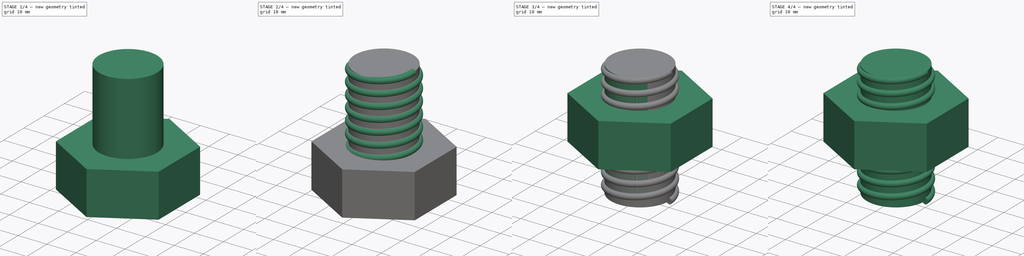
[diagram: build sequence overview — one tinted view per stage of 4, left to right]
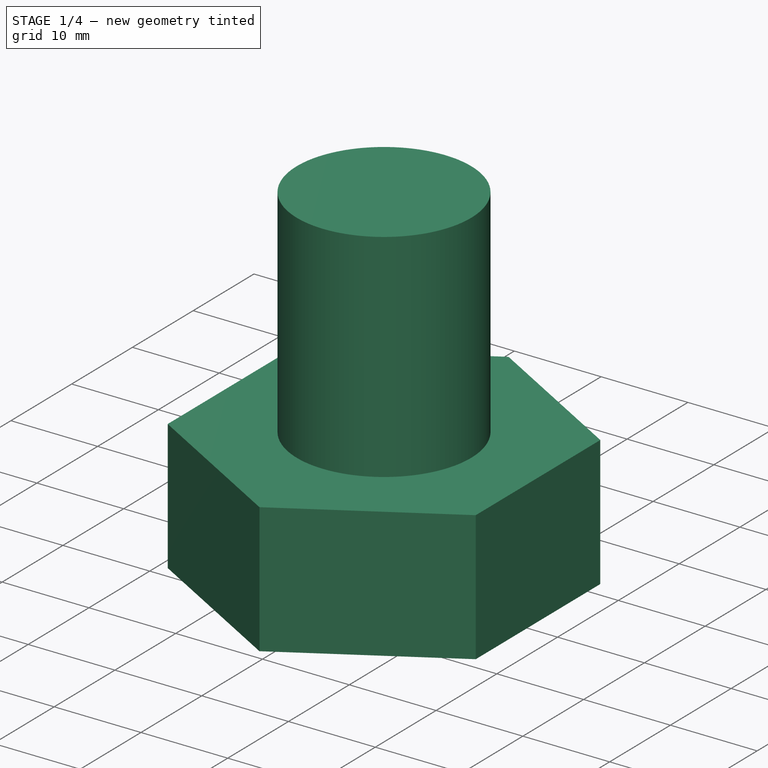
[diagram: stage 1 of 4 — iso view after this stage's code; geometry added in this stage tinted green]
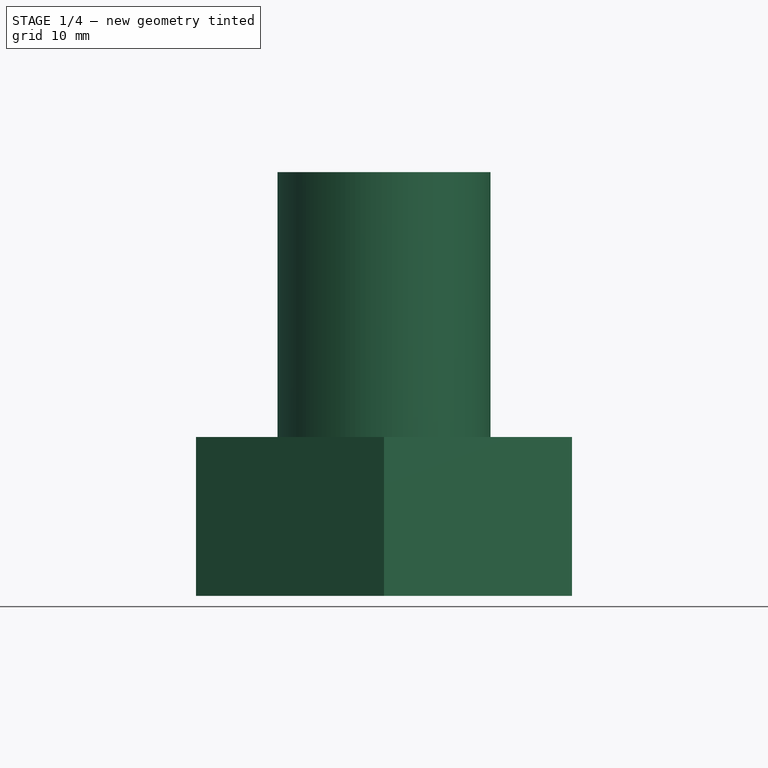
[diagram: stage 1 of 4 — front view after this stage's code; geometry added in this stage tinted green]
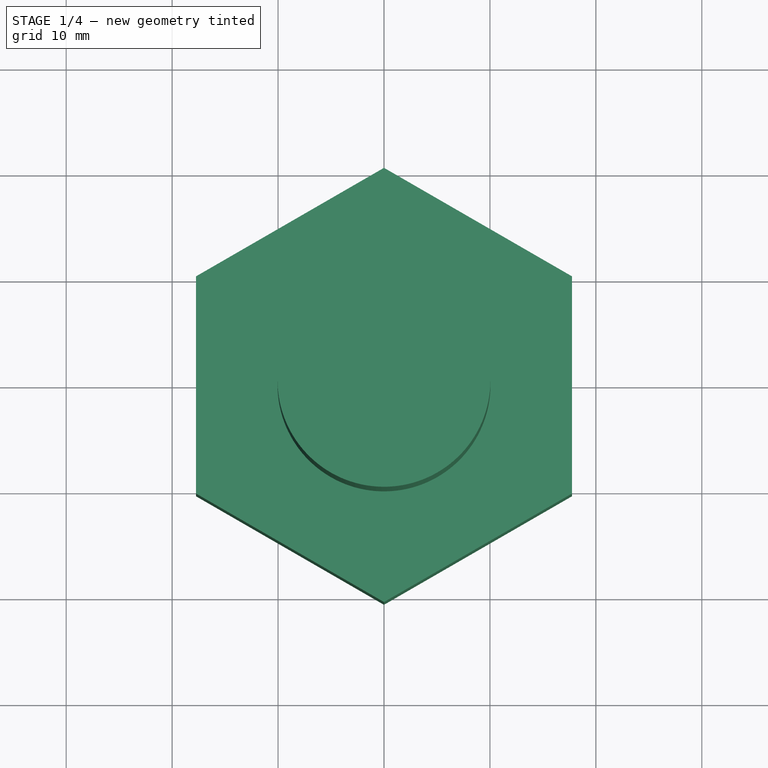
[diagram: stage 1 of 4 — top view after this stage's code; geometry added in this stage tinted green]
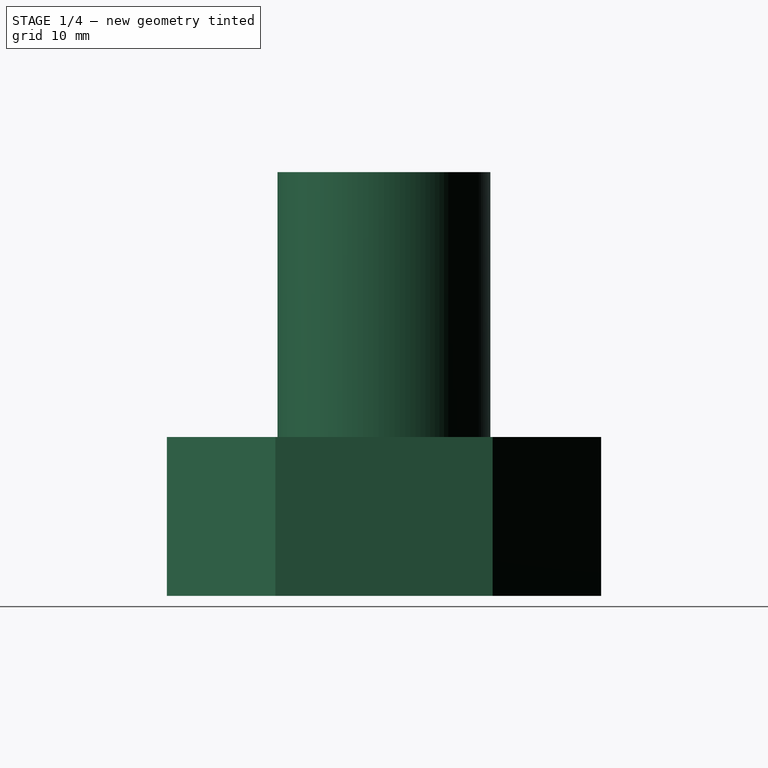
[diagram: stage 1 of 4 — right view after this stage's code; geometry added in this stage tinted green]
FCSTD DOCUMENT  (FreeCAD 0.20R27319 (Git))
Label: Threads
License: All rights reserved
LicenseURL: http://en.wikipedia.org/wiki/All_rights_reserved
objects: PartDesign::FeatureBase×3, Sketcher::SketchObject×3, PartDesign::Body×3, Part::Cylinder×2, Part::Helix×2, Part::Sweep×2, Part::MultiFuse×2, PartDesign::Pad×1, Part::Cut×1
note: 20 computed .brp shape members not serialized (recipe doc carries the construction recipe); baked Part::Feature solids carry a one-line shape summary decoded from their .brp

FEATURE [PartDesign::Body] Body001
  BaseFeature = -> Fusion
  Group = -> [BaseFeature001]
  Origin = -> Origin001
  Tip = -> BaseFeature001
FEATURE [Part::Cylinder] Cylinder001
  Angle = 360
  AttacherType = Attacher::AttachEngine3D
  FirstAngle = 0
  Height = 40
  Radius = 10.05
  SecondAngle = 0
FEATURE [Sketcher::SketchObject] Sketch002
  FullyConstrained = true
  MapMode = 5
  Support = -> [XY_Plane002]
  sketch-geometry (7):
    g0: LineSegment StartX=17.75 StartY=10.248 StartZ=0 EndX=0 EndY=20.4959 EndZ=0
    g1: LineSegment StartX=0 StartY=20.4959 StartZ=0 EndX=-17.75 EndY=10.248 EndZ=0
    g2: LineSegment StartX=-17.75 StartY=10.248 StartZ=0 EndX=-17.75 EndY=-10.248 EndZ=0
    g3: LineSegment StartX=-17.75 StartY=-10.248 StartZ=0 EndX=0 EndY=-20.4959 EndZ=0
    g4: LineSegment StartX=0 StartY=-20.4959 StartZ=0 EndX=17.75 EndY=-10.248 EndZ=0
    g5: LineSegment StartX=17.75 StartY=-10.248 StartZ=0 EndX=17.75 EndY=10.248 EndZ=0
    g6: Circle CenterX=0 CenterY=0 CenterZ=0 NormalX=0 NormalY=0 NormalZ=1 AngleXU=0 Radius=20.4959
  constraints (16):
    c: Coincident(g0,g1)
    c: Coincident(g1,g2)
    c: Coincident(g2,g3)
    c: Coincident(g3,g4)
    c: Coincident(g4,g5)
    c: Coincident(g5,g0)
    c: Equal(g0, g1-g5) x5
    c: PointOnObject(g0,g6)
    c: PointOnObject(g1,g6)
    c: PointOnObject(g2,g6)
    c: PointOnObject(g3,g6)
    c: PointOnObject(g4,g6)
    c: PointOnObject(g5,g6)
    c: Coincident(g6,g-1)
    c: Vertical(g0,g3)
    c: DistanceX(g1,g0) = 35.5
FEATURE [PartDesign::Pad] Pad
  Direction = (0,0,1)
  Length = 15
  Length2 = 10
  Profile = -> Sketch002
  ReferenceAxis = -> Sketch002 [N_Axis]
  Type = 0
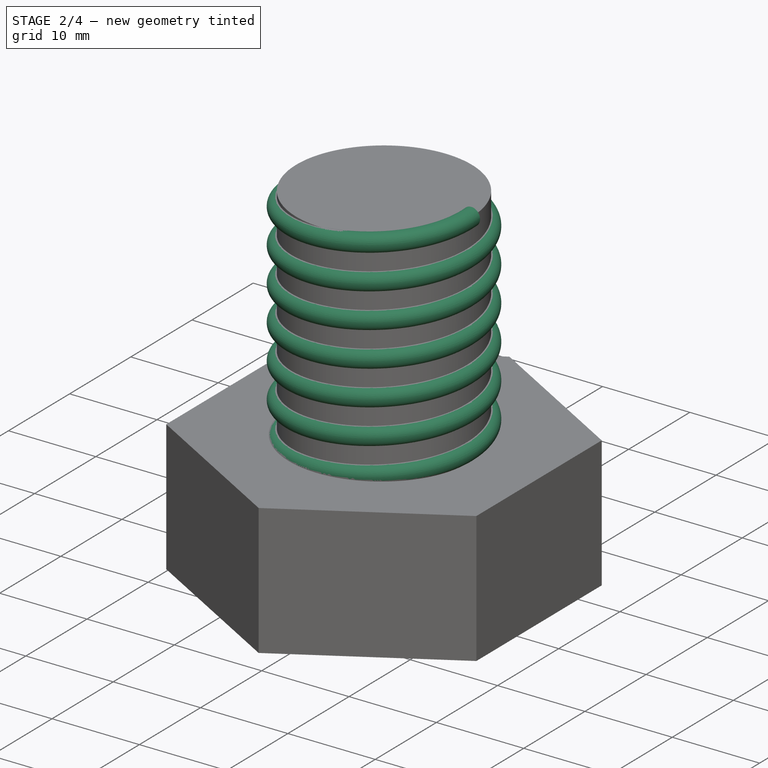
[diagram: stage 2 of 4 — iso view after this stage's code; geometry added in this stage tinted green]
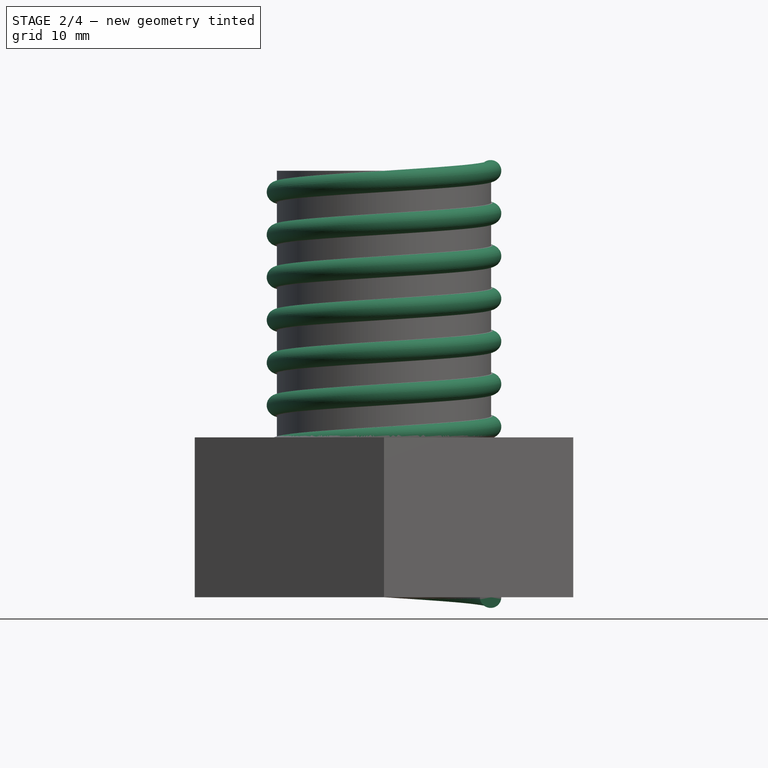
[diagram: stage 2 of 4 — front view after this stage's code; geometry added in this stage tinted green]
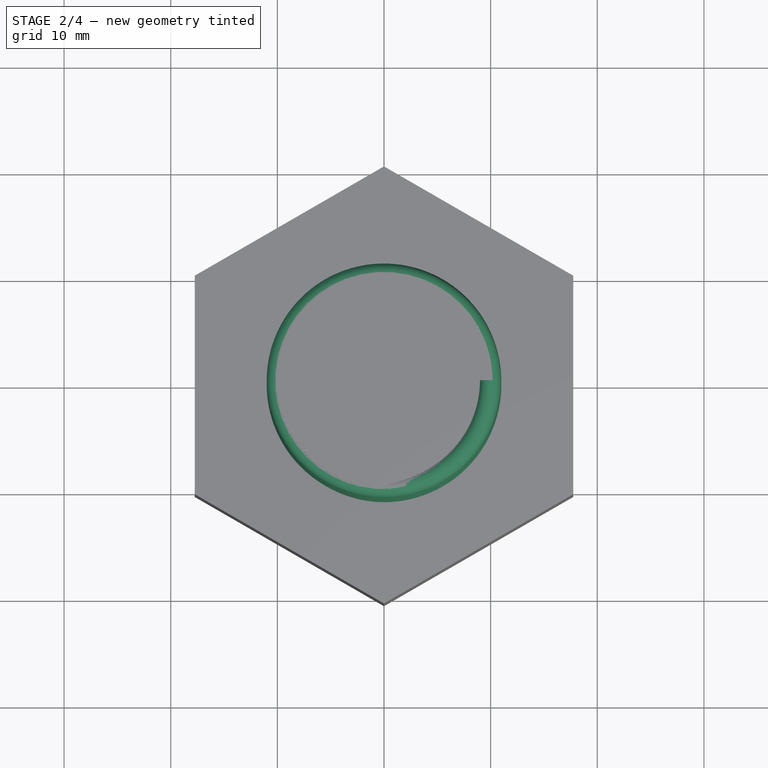
[diagram: stage 2 of 4 — top view after this stage's code; geometry added in this stage tinted green]
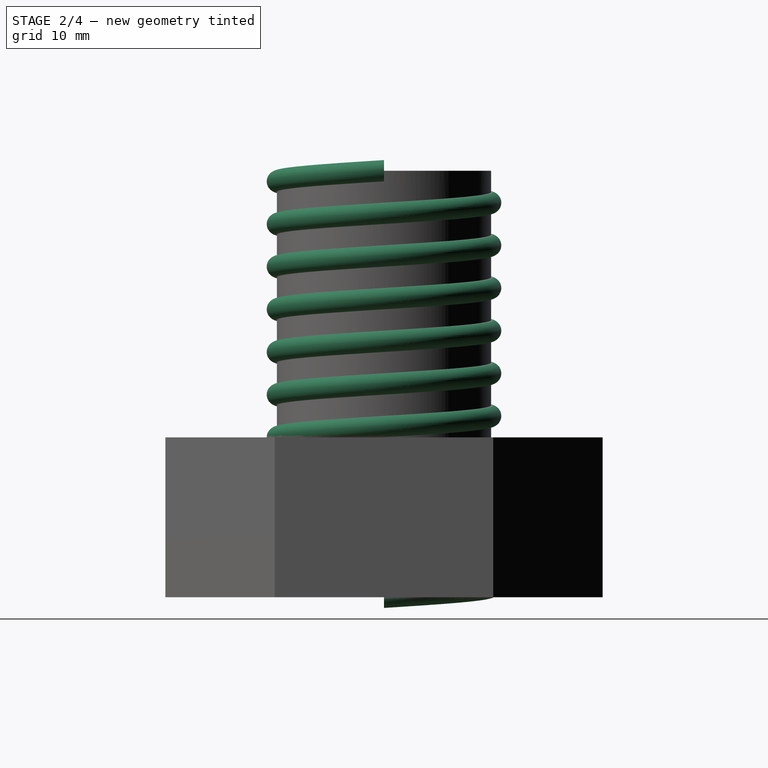
[diagram: stage 2 of 4 — right view after this stage's code; geometry added in this stage tinted green]
FEATURE [Part::Helix] Helix001
  Angle = 0
  AttacherType = Attacher::AttachEngine3D
  Height = 40
  LocalCoord = 0
  Pitch = 4
  Radius = 10
  SegmentLength = 1
  Style = 1
FEATURE [PartDesign::FeatureBase] BaseFeature002
  BaseFeature = -> Helix001
FEATURE [Sketcher::SketchObject] Sketch001
  ExternalGeometry = -> [BaseFeature002]
  FullyConstrained = true
  MapMode = 5
  Placement = pos=(0,0,0) rot=(1,0,0;1.5708rad)
  Support = -> [XZ_Plane002]
  sketch-geometry (1):
    g0: Circle CenterX=10 CenterY=40 CenterZ=0 NormalX=0 NormalY=0 NormalZ=1 AngleXU=0 Radius=1
  constraints (2):
    c: Coincident(g0,g-3)
    c: Diameter(g0) = 2
FEATURE [Part::Sweep] Sweep001
  Frenet = true
  Sections = -> [Sketch001]
  Solid = true
  Spine = -> BaseFeature002 [Edge10,Edge9,Edge8,Edge7,Edge6,Edge5,Edge4,Edge3,Edge2,Edge1]
  Transition = 1
FEATURE [Part::MultiFuse] Fusion001  label="Thread cut"
  Shapes = -> [Cylinder001,Sweep001]
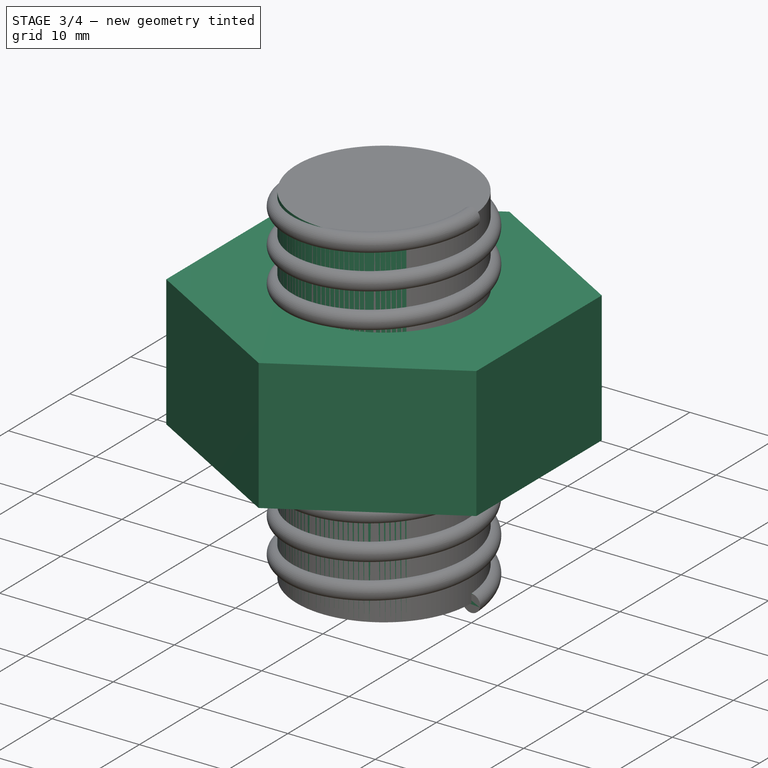
[diagram: stage 3 of 4 — iso view after this stage's code; geometry added in this stage tinted green]
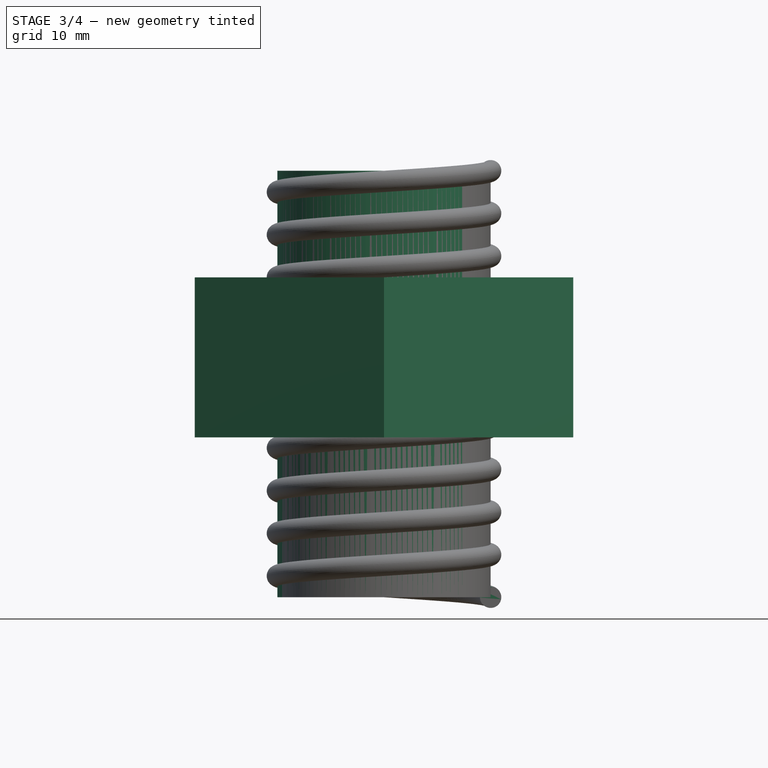
[diagram: stage 3 of 4 — front view after this stage's code; geometry added in this stage tinted green]
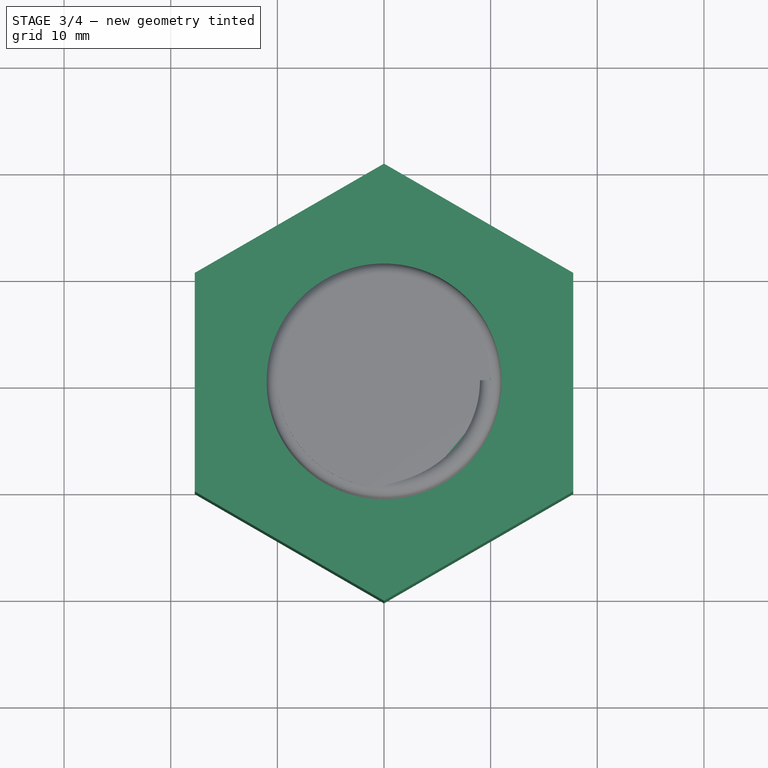
[diagram: stage 3 of 4 — top view after this stage's code; geometry added in this stage tinted green]
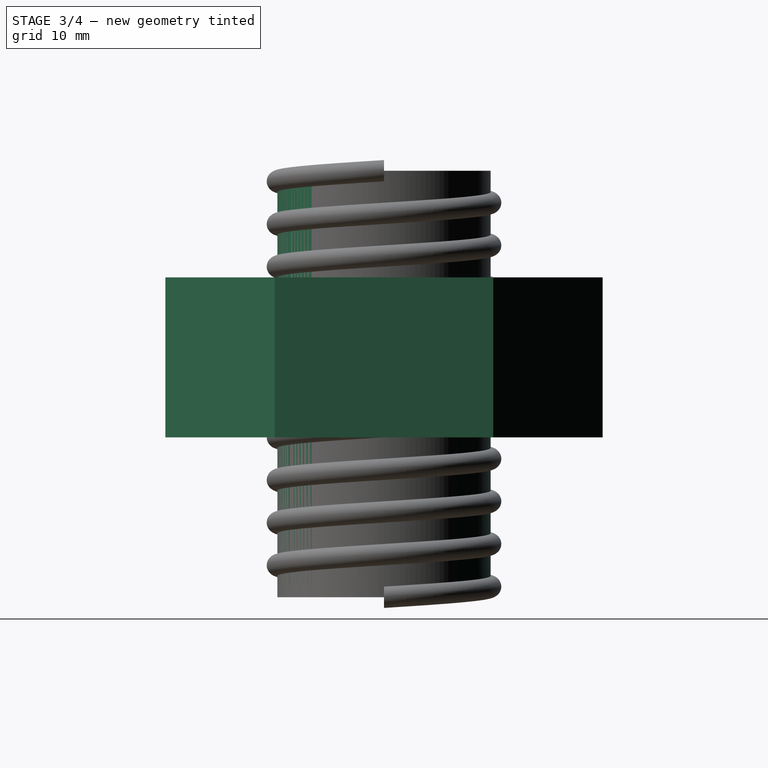
[diagram: stage 3 of 4 — right view after this stage's code; geometry added in this stage tinted green]
FEATURE [Part::Cylinder] Cylinder
  Angle = 360
  AttacherType = Attacher::AttachEngine3D
  FirstAngle = 0
  Height = 40
  Radius = 10
  SecondAngle = 0
FEATURE [Part::Helix] Helix
  Angle = 0
  AttacherType = Attacher::AttachEngine3D
  Height = 40
  LocalCoord = 0
  Pitch = 4
  Radius = 10
  SegmentLength = 1
  Style = 1
FEATURE [PartDesign::FeatureBase] BaseFeature
  BaseFeature = -> Helix
FEATURE [Sketcher::SketchObject] Sketch
  ExternalGeometry = -> [BaseFeature]
  FullyConstrained = true
  MapMode = 5
  Placement = pos=(0,0,0) rot=(1,0,0;1.5708rad)
  Support = -> [XZ_Plane]
  sketch-geometry (1):
    g0: Circle CenterX=10 CenterY=40 CenterZ=0 NormalX=0 NormalY=0 NormalZ=1 AngleXU=0 Radius=1
  constraints (2):
    c: Coincident(g0,g-3)
    c: Diameter(g0) = 2
FEATURE [PartDesign::Body] Body
  BaseFeature = -> Helix
  Group = -> [BaseFeature,Sketch]
  Origin = -> Origin
  Tip = -> BaseFeature
FEATURE [Part::Sweep] Sweep
  Frenet = true
  Sections = -> [Sketch]
  Solid = true
  Spine = -> BaseFeature [Edge10,Edge9,Edge8,Edge7,Edge6,Edge5,Edge4,Edge3,Edge2,Edge1]
  Transition = 1
FEATURE [PartDesign::Body] Body002  label="Nut Body"
  Group = -> [Sketch002,Pad]
  Origin = -> Origin002
  Placement = pos=(0,0,15) rot=(0,0,1;0rad)
  Tip = -> Pad
FEATURE [Part::Cut] Cut  label="Nut"
  Base = -> Body002
  Tool = -> Fusion001
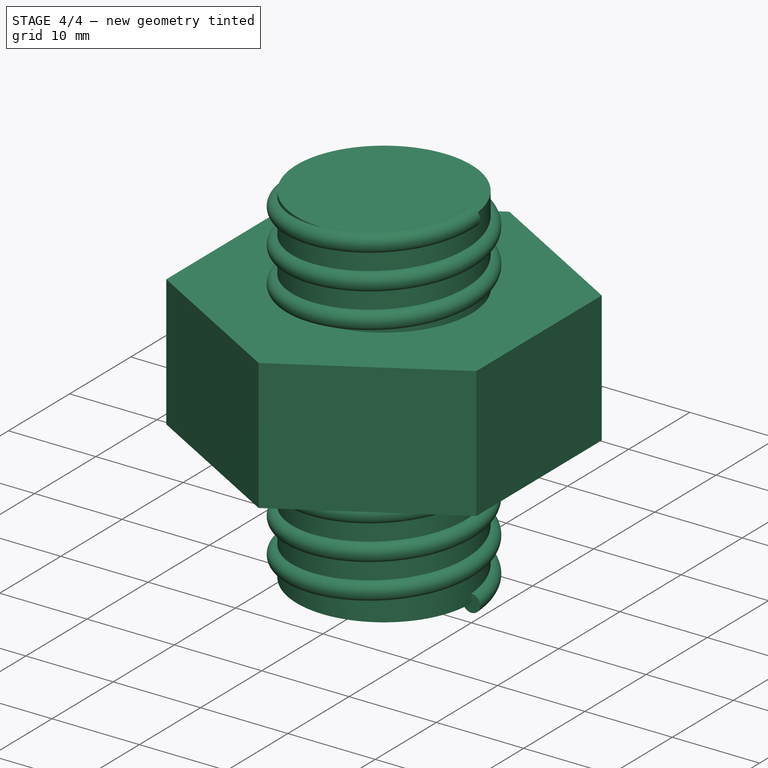
[diagram: stage 4 of 4 — iso view after this stage's code; geometry added in this stage tinted green]
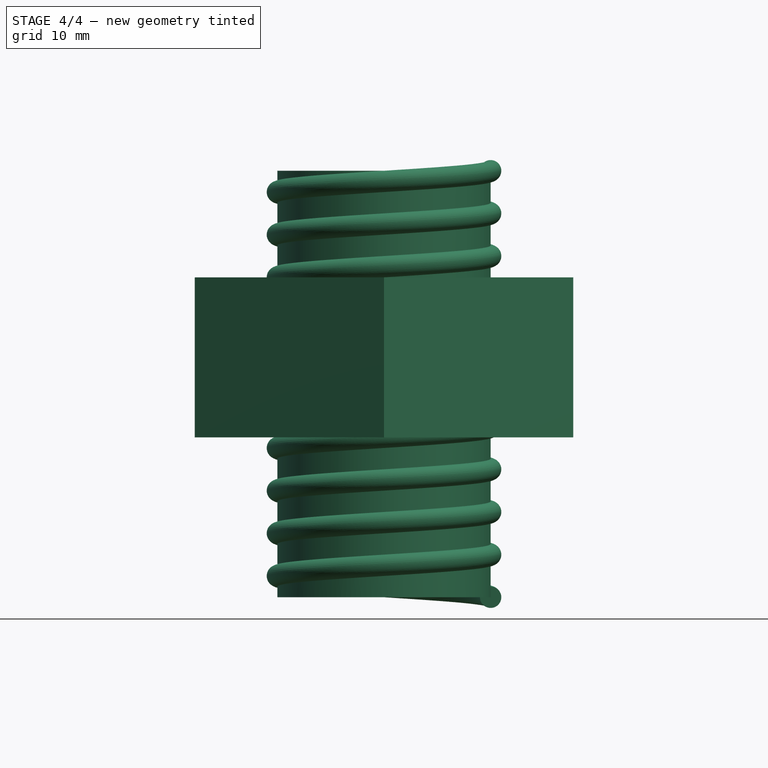
[diagram: stage 4 of 4 — front view after this stage's code; geometry added in this stage tinted green]
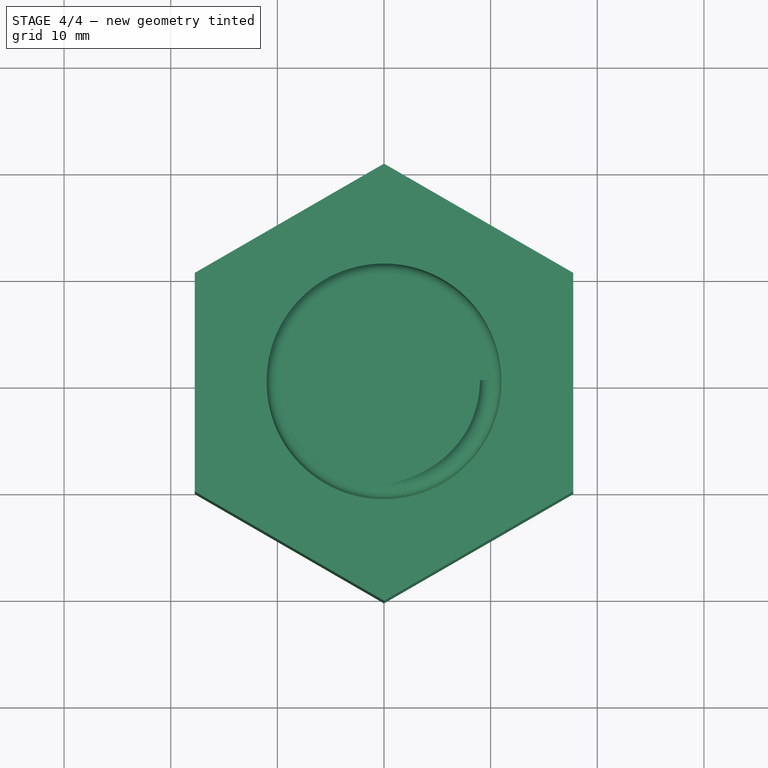
[diagram: stage 4 of 4 — top view after this stage's code; geometry added in this stage tinted green]
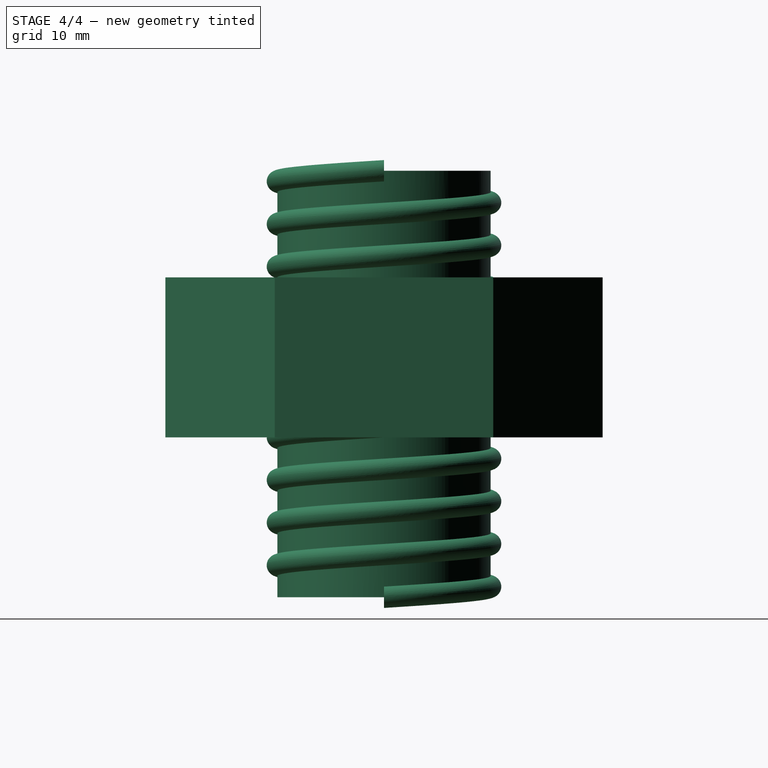
[diagram: stage 4 of 4 — right view after this stage's code; geometry added in this stage tinted green]
FEATURE [Part::MultiFuse] Fusion  label="Threaded Rod"
  Shapes = -> [Cylinder,Sweep]
FEATURE [PartDesign::FeatureBase] BaseFeature001
  BaseFeature = -> Fusion
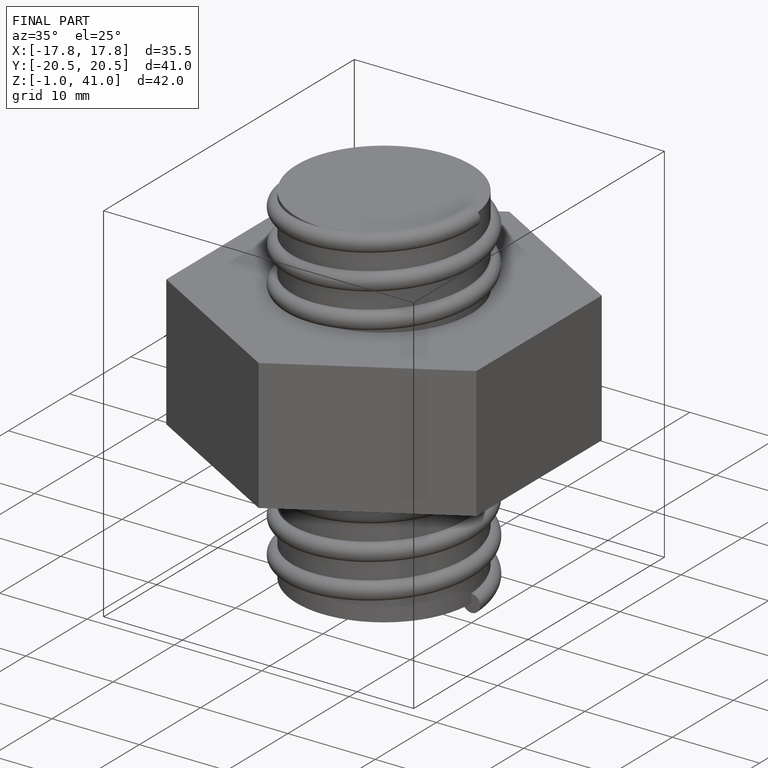
[diagram: finished part — iso view with bounding-box wireframe]
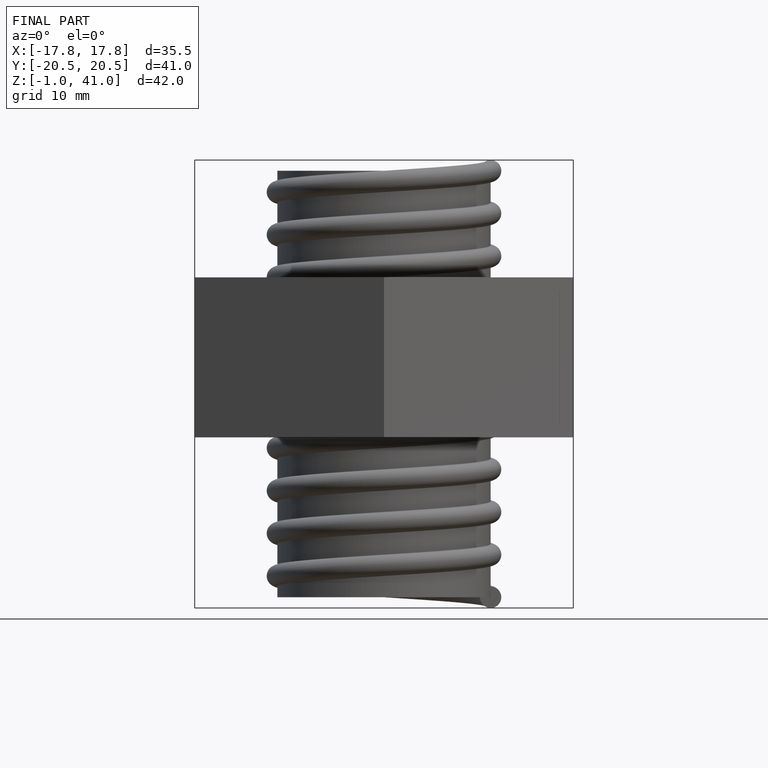
[diagram: finished part — front view with bounding-box wireframe]
